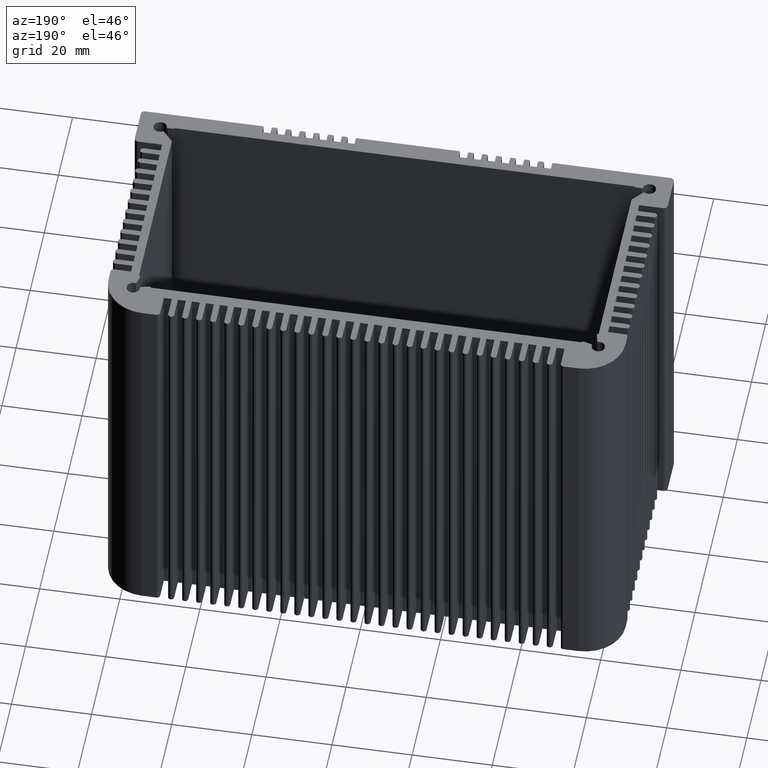
[diagram: clean part render]
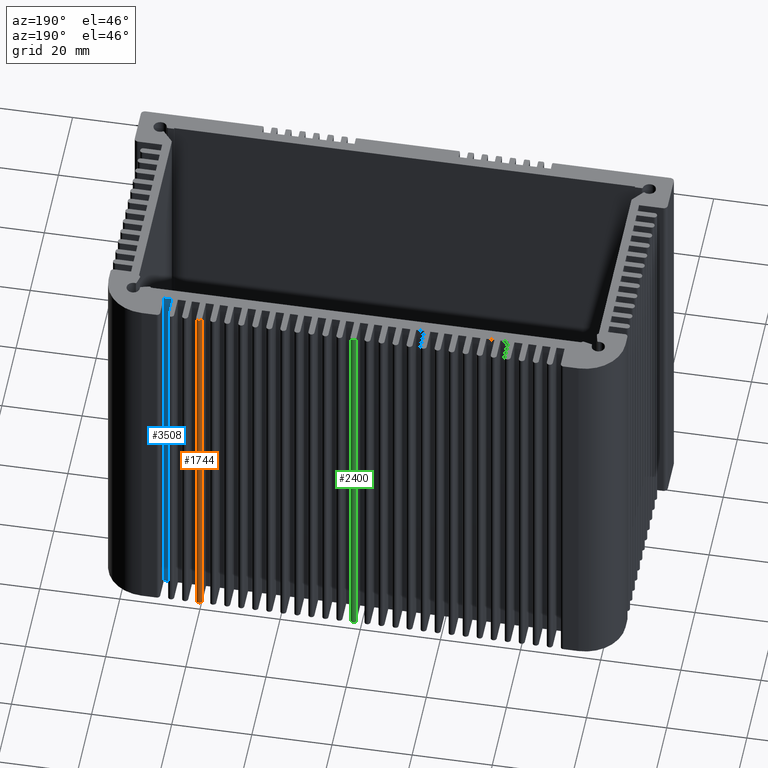
[diagram: same view with three faces highlighted in distinct colors, each labeled with its STEP entity id]
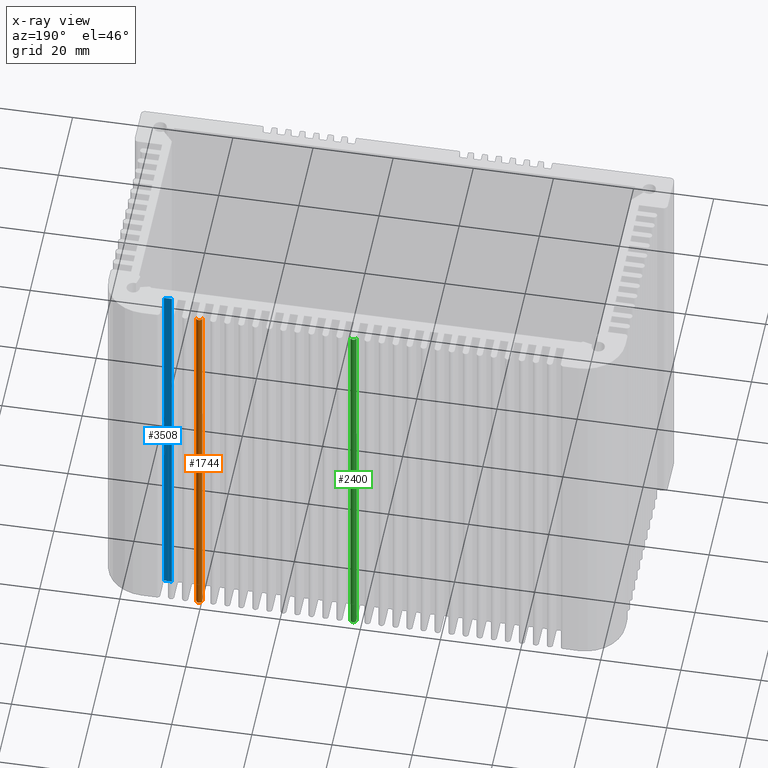
[diagram: x-ray of the same camera — body ghosted, the three highlighted faces saturated]
A machine part, auxiliary view with three faces highlighted in distinct colors.
The next image is the same camera in x-ray (body ghosted, the three faces saturated) — at least one of them is partly hidden behind the body in this view.
Their STEP definitions:

[orange] entity #1744 — the highlighted cylindrical surface (edge-blend (fillet) strip) has radius 0.75 mm, axis along (-0, -0, -1).
#46 = DIRECTION ( 'NONE',  ( 1.000000000000000000, 0.0000000000000000000, 0.0000000000000000000 ) ) ;
#85 = FACE_OUTER_BOUND ( 'NONE', #11422, .T. ) ;
#104 = VERTEX_POINT ( 'NONE', #11340 ) ;
#330 = LINE ( 'NONE', #11326, #8464 ) ;
#493 = CARTESIAN_POINT ( 'NONE',  ( 60.22052464119742865, -0.2414037144492509057, 50.00000000000000000 ) ) ;
#838 = AXIS2_PLACEMENT_3D ( 'NONE', #5091, #4607, #3786 ) ;
#1128 = VECTOR ( 'NONE', #4505, 1000.000000000000000 ) ;
#1577 = DIRECTION ( 'NONE',  ( 1.000000000000000000, 0.0000000000000000000, 0.0000000000000000000 ) ) ;
#1618 = CIRCLE ( 'NONE', #13679, 0.7500000000000006661 ) ;
#1744 = ADVANCED_FACE ( 'NONE', ( #85 ), #5094, .T. ) ;
#3786 = DIRECTION ( 'NONE',  ( -1.000000000000000000, 0.0000000000000000000, 0.0000000000000000000 ) ) ;
#3817 = VERTEX_POINT ( 'NONE', #12418 ) ;
#4249 = CARTESIAN_POINT ( 'NONE',  ( 60.97052464119742865, -0.2414037144492509057, 50.00000000000000000 ) ) ;
#4505 = DIRECTION ( 'NONE',  ( -0.0000000000000000000, -0.0000000000000000000, -1.000000000000000000 ) ) ;
#4607 = DIRECTION ( 'NONE',  ( -0.0000000000000000000, -0.0000000000000000000, -1.000000000000000000 ) ) ;
#5091 = CARTESIAN_POINT ( 'NONE',  ( 60.22052464119742865, -0.2414037144492509057, 50.00000000000000000 ) ) ;
#5094 = CYLINDRICAL_SURFACE ( 'NONE', #838, 0.7500000000000006661 ) ;
#5212 = CIRCLE ( 'NONE', #12041, 0.7500000000000006661 ) ;
#5313 = VERTEX_POINT ( 'NONE', #10107 ) ;
#5787 = ORIENTED_EDGE ( 'NONE', *, *, #12885, .F. ) ;
#6382 = DIRECTION ( 'NONE',  ( 0.0000000000000000000, 0.0000000000000000000, 1.000000000000000000 ) ) ;
#7882 = DIRECTION ( 'NONE',  ( 0.0000000000000000000, 0.0000000000000000000, 1.000000000000000000 ) ) ;
#8371 = EDGE_CURVE ( 'NONE', #104, #5313, #5212, .T. ) ;
#8464 = VECTOR ( 'NONE', #12371, 1000.000000000000000 ) ;
#9455 = EDGE_CURVE ( 'NONE', #13230, #104, #330, .T. ) ;
#9912 = LINE ( 'NONE', #12968, #1128 ) ;
#10107 = CARTESIAN_POINT ( 'NONE',  ( 59.47052464119742865, -0.2414037144492508224, -50.00000000000000000 ) ) ;
#11326 = CARTESIAN_POINT ( 'NONE',  ( 60.97052464119742865, -0.2414037144492509057, 50.00000000000000000 ) ) ;
#11331 = ORIENTED_EDGE ( 'NONE', *, *, #12695, .F. ) ;
#11340 = CARTESIAN_POINT ( 'NONE',  ( 60.97052464119742865, -0.2414037144492509057, -50.00000000000000000 ) ) ;
#11422 = EDGE_LOOP ( 'NONE', ( #13106, #11331, #5787, #13452 ) ) ;
#12041 = AXIS2_PLACEMENT_3D ( 'NONE', #12748, #6382, #46 ) ;
#12371 = DIRECTION ( 'NONE',  ( -0.0000000000000000000, -0.0000000000000000000, -1.000000000000000000 ) ) ;
#12418 = CARTESIAN_POINT ( 'NONE',  ( 59.47052464119742865, -0.2414037144492508224, 50.00000000000000000 ) ) ;
#12695 = EDGE_CURVE ( 'NONE', #3817, #5313, #9912, .T. ) ;
#12748 = CARTESIAN_POINT ( 'NONE',  ( 60.22052464119742865, -0.2414037144492509057, -50.00000000000000000 ) ) ;
#12885 = EDGE_CURVE ( 'NONE', #13230, #3817, #1618, .T. ) ;
#12968 = CARTESIAN_POINT ( 'NONE',  ( 59.47052464119742865, -0.2414037144492508224, 50.00000000000000000 ) ) ;
#13106 = ORIENTED_EDGE ( 'NONE', *, *, #8371, .T. ) ;
#13230 = VERTEX_POINT ( 'NONE', #4249 ) ;
#13452 = ORIENTED_EDGE ( 'NONE', *, *, #9455, .T. ) ;
#13679 = AXIS2_PLACEMENT_3D ( 'NONE', #493, #7882, #1577 ) ;

[blue] entity #3508 — the highlighted planar face has unit normal (0, -1, 0).
#31 = VERTEX_POINT ( 'NONE', #10000 ) ;
#146 = DIRECTION ( 'NONE',  ( -1.000000000000000000, 0.0000000000000000000, 0.0000000000000000000 ) ) ;
#304 = EDGE_CURVE ( 'NONE', #3136, #1949, #3717, .T. ) ;
#447 = LINE ( 'NONE', #3864, #5760 ) ;
#706 = CARTESIAN_POINT ( 'NONE',  ( 69.97052464119759918, -5.491403714453377383, 50.00000000000000000 ) ) ;
#789 = EDGE_CURVE ( 'NONE', #6880, #31, #8638, .T. ) ;
#1243 = CARTESIAN_POINT ( 'NONE',  ( 69.97052464119759918, -5.491403714453377383, -50.00000000000000000 ) ) ;
#1255 = FACE_OUTER_BOUND ( 'NONE', #7228, .T. ) ;
#1949 = VERTEX_POINT ( 'NONE', #5910 ) ;
#2651 = VECTOR ( 'NONE', #146, 1000.000000000000000 ) ;
#2954 = PLANE ( 'NONE',  #10109 ) ;
#3136 = VERTEX_POINT ( 'NONE', #706 ) ;
#3508 = ADVANCED_FACE ( 'NONE', ( #1255 ), #2954, .F. ) ;
#3717 = LINE ( 'NONE', #4791, #11821 ) ;
#3864 = CARTESIAN_POINT ( 'NONE',  ( 69.97052464119759918, -5.491403714453377383, 50.00000000000000000 ) ) ;
#4791 = CARTESIAN_POINT ( 'NONE',  ( 69.97052464119759918, -5.491403714453377383, 50.00000000000000000 ) ) ;
#4929 = DIRECTION ( 'NONE',  ( -1.000000000000000000, 0.0000000000000000000, 0.0000000000000000000 ) ) ;
#5501 = VECTOR ( 'NONE', #9489, 1000.000000000000000 ) ;
#5760 = VECTOR ( 'NONE', #4929, 1000.000000000000000 ) ;
#5839 = DIRECTION ( 'NONE',  ( -0.0000000000000000000, -0.0000000000000000000, -1.000000000000000000 ) ) ;
#5910 = CARTESIAN_POINT ( 'NONE',  ( 69.97052464119759918, -5.491403714453377383, -50.00000000000000000 ) ) ;
#5950 = CARTESIAN_POINT ( 'NONE',  ( 67.97052464119742865, -5.491403714453377383, 50.00000000000000000 ) ) ;
#6880 = VERTEX_POINT ( 'NONE', #5950 ) ;
#7228 = EDGE_LOOP ( 'NONE', ( #8733, #10364, #10928, #9117 ) ) ;
#7234 = DIRECTION ( 'NONE',  ( 0.0000000000000000000, -1.000000000000000000, 0.0000000000000000000 ) ) ;
#8278 = LINE ( 'NONE', #1243, #2651 ) ;
#8638 = LINE ( 'NONE', #13190, #5501 ) ;
#8733 = ORIENTED_EDGE ( 'NONE', *, *, #10939, .T. ) ;
#9117 = ORIENTED_EDGE ( 'NONE', *, *, #304, .T. ) ;
#9489 = DIRECTION ( 'NONE',  ( -0.0000000000000000000, -0.0000000000000000000, -1.000000000000000000 ) ) ;
#10000 = CARTESIAN_POINT ( 'NONE',  ( 67.97052464119742865, -5.491403714453377383, -50.00000000000000000 ) ) ;
#10109 = AXIS2_PLACEMENT_3D ( 'NONE', #10408, #7234, #10588 ) ;
#10364 = ORIENTED_EDGE ( 'NONE', *, *, #789, .F. ) ;
#10408 = CARTESIAN_POINT ( 'NONE',  ( 69.97052464119759918, -5.491403714453377383, 50.00000000000000000 ) ) ;
#10588 = DIRECTION ( 'NONE',  ( 0.0000000000000000000, -0.0000000000000000000, -1.000000000000000000 ) ) ;
#10928 = ORIENTED_EDGE ( 'NONE', *, *, #11722, .F. ) ;
#10939 = EDGE_CURVE ( 'NONE', #1949, #31, #8278, .T. ) ;
#11722 = EDGE_CURVE ( 'NONE', #3136, #6880, #447, .T. ) ;
#11821 = VECTOR ( 'NONE', #5839, 1000.000000000000000 ) ;
#13190 = CARTESIAN_POINT ( 'NONE',  ( 67.97052464119742865, -5.491403714453377383, 50.00000000000000000 ) ) ;

[green] entity #2400 — the highlighted cylindrical surface (edge-blend (fillet) strip) has radius 0.75 mm, axis along (-0, -0, -1).
#202 = VECTOR ( 'NONE', #425, 1000.000000000000000 ) ;
#218 = CARTESIAN_POINT ( 'NONE',  ( 22.47052464119742154, -0.2414037144492509057, 50.00000000000000000 ) ) ;
#419 = CIRCLE ( 'NONE', #11737, 0.7500000000000006661 ) ;
#425 = DIRECTION ( 'NONE',  ( -0.0000000000000000000, -0.0000000000000000000, -1.000000000000000000 ) ) ;
#1717 = EDGE_CURVE ( 'NONE', #7253, #5708, #419, .T. ) ;
#1793 = EDGE_LOOP ( 'NONE', ( #8513, #9229, #9095, #3702 ) ) ;
#2239 = EDGE_CURVE ( 'NONE', #10560, #10725, #12846, .T. ) ;
#2400 = ADVANCED_FACE ( 'NONE', ( #13659 ), #2408, .T. ) ;
#2408 = CYLINDRICAL_SURFACE ( 'NONE', #4069, 0.7500000000000006661 ) ;
#3373 = LINE ( 'NONE', #7799, #202 ) ;
#3702 = ORIENTED_EDGE ( 'NONE', *, *, #11994, .T. ) ;
#4069 = AXIS2_PLACEMENT_3D ( 'NONE', #6702, #5661, #6663 ) ;
#4388 = EDGE_CURVE ( 'NONE', #5708, #10725, #3373, .T. ) ;
#5452 = LINE ( 'NONE', #10700, #10757 ) ;
#5661 = DIRECTION ( 'NONE',  ( -0.0000000000000000000, -0.0000000000000000000, -1.000000000000000000 ) ) ;
#5708 = VERTEX_POINT ( 'NONE', #10454 ) ;
#5763 = CARTESIAN_POINT ( 'NONE',  ( 22.47052464119742154, -0.2414037144492509057, -50.00000000000000000 ) ) ;
#6663 = DIRECTION ( 'NONE',  ( -1.000000000000000000, 0.0000000000000000000, 0.0000000000000000000 ) ) ;
#6702 = CARTESIAN_POINT ( 'NONE',  ( 21.72052464119741799, -0.2414037144492509057, 50.00000000000000000 ) ) ;
#6863 = DIRECTION ( 'NONE',  ( 0.0000000000000000000, 0.0000000000000000000, 1.000000000000000000 ) ) ;
#7253 = VERTEX_POINT ( 'NONE', #218 ) ;
#7799 = CARTESIAN_POINT ( 'NONE',  ( 20.97052464119741799, -0.2414037144492508224, 50.00000000000000000 ) ) ;
#8513 = ORIENTED_EDGE ( 'NONE', *, *, #2239, .T. ) ;
#9095 = ORIENTED_EDGE ( 'NONE', *, *, #1717, .F. ) ;
#9181 = DIRECTION ( 'NONE',  ( 1.000000000000000000, 0.0000000000000000000, 0.0000000000000000000 ) ) ;
#9229 = ORIENTED_EDGE ( 'NONE', *, *, #4388, .F. ) ;
#9296 = DIRECTION ( 'NONE',  ( 1.000000000000000000, 0.0000000000000000000, 0.0000000000000000000 ) ) ;
#10454 = CARTESIAN_POINT ( 'NONE',  ( 20.97052464119741799, -0.2414037144492508224, 50.00000000000000000 ) ) ;
#10560 = VERTEX_POINT ( 'NONE', #5763 ) ;
#10700 = CARTESIAN_POINT ( 'NONE',  ( 22.47052464119742154, -0.2414037144492509057, 50.00000000000000000 ) ) ;
#10707 = AXIS2_PLACEMENT_3D ( 'NONE', #13340, #13383, #9181 ) ;
#10725 = VERTEX_POINT ( 'NONE', #11528 ) ;
#10757 = VECTOR ( 'NONE', #11755, 1000.000000000000000 ) ;
#11528 = CARTESIAN_POINT ( 'NONE',  ( 20.97052464119741799, -0.2414037144492508224, -50.00000000000000000 ) ) ;
#11737 = AXIS2_PLACEMENT_3D ( 'NONE', #12257, #6863, #9296 ) ;
#11755 = DIRECTION ( 'NONE',  ( -0.0000000000000000000, -0.0000000000000000000, -1.000000000000000000 ) ) ;
#11994 = EDGE_CURVE ( 'NONE', #7253, #10560, #5452, .T. ) ;
#12257 = CARTESIAN_POINT ( 'NONE',  ( 21.72052464119741799, -0.2414037144492509057, 50.00000000000000000 ) ) ;
#12846 = CIRCLE ( 'NONE', #10707, 0.7500000000000006661 ) ;
#13340 = CARTESIAN_POINT ( 'NONE',  ( 21.72052464119741799, -0.2414037144492509057, -50.00000000000000000 ) ) ;
#13383 = DIRECTION ( 'NONE',  ( 0.0000000000000000000, 0.0000000000000000000, 1.000000000000000000 ) ) ;
#13659 = FACE_OUTER_BOUND ( 'NONE', #1793, .T. ) ;